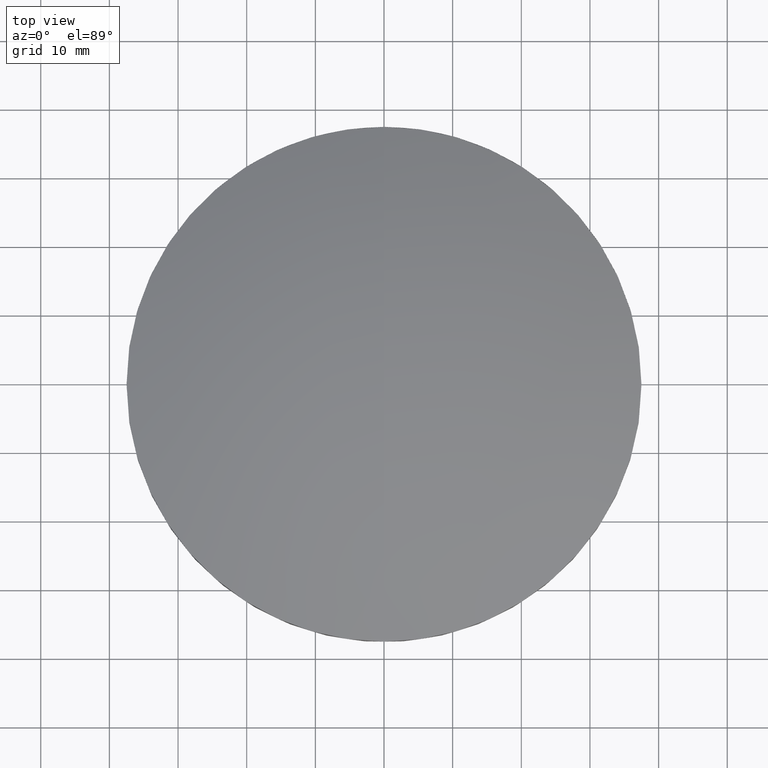
[diagram: clean part render]
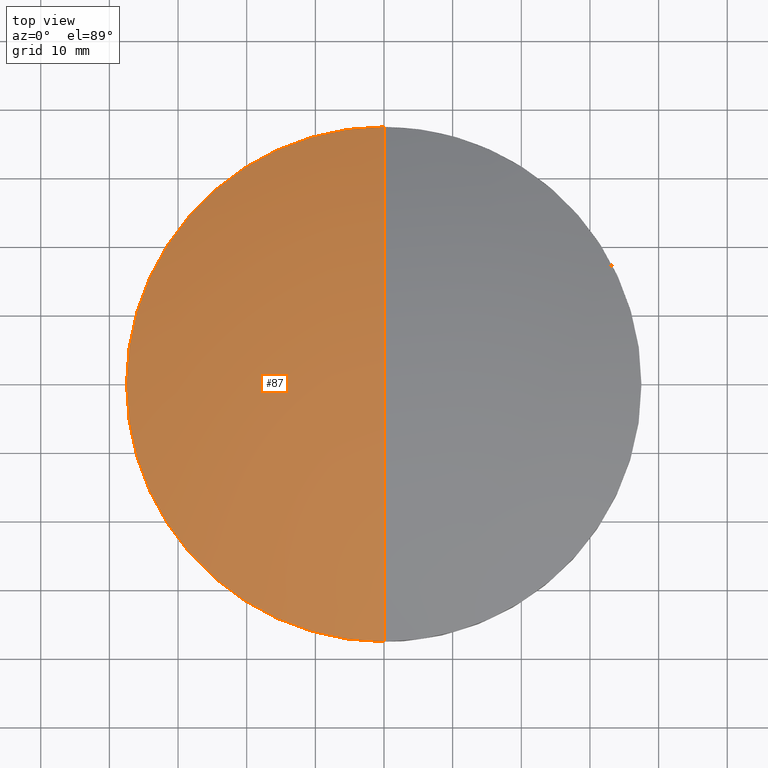
[diagram: same view with one face highlighted and labeled with its STEP entity id]
A machine part, top view. The second image highlights one B-rep face of the part: STEP entity #87.
In plain terms, the highlighted spherical surface has radius 103.01 mm.
Its self-contained STEP definition (entity closure, byte-faithful):
#28 = DIRECTION ( 'NONE',  ( 0.0000000000000000000, 0.0000000000000000000, -1.000000000000000000 ) ) ;
#29 = DIRECTION ( 'NONE',  ( 1.000000000000000000, 0.0000000000000000000, 0.0000000000000000000 ) ) ;
#30 = CARTESIAN_POINT ( 'NONE',  ( 0.0000000000000000000, 0.0000000000000000000, -97.97999999999999000 ) ) ;
#31 = AXIS2_PLACEMENT_3D ( 'NONE', #30, #29, #28 ) ;
#32 = CIRCLE ( 'NONE', #31, 103.0099999999999900 ) ;
#48 = VERTEX_POINT ( 'NONE', #61 ) ;
#49 = EDGE_CURVE ( 'NONE', #48, #86, #60, .T. ) ;
#51 = VERTEX_POINT ( 'NONE', #53 ) ;
#53 = CARTESIAN_POINT ( 'NONE',  ( 0.0000000000000000000, 6.307335025362153200E-015, 5.030000000000006500 ) ) ;
#54 = DIRECTION ( 'NONE',  ( 1.000000000000000000, 0.0000000000000000000, 0.0000000000000000000 ) ) ;
#55 = DIRECTION ( 'NONE',  ( -0.0000000000000000000, -0.0000000000000000000, 1.000000000000000000 ) ) ;
#56 = CARTESIAN_POINT ( 'NONE',  ( 0.0000000000000000000, 0.0000000000000000000, -2.038298430765758300 ) ) ;
#57 = AXIS2_PLACEMENT_3D ( 'NONE', #56, #55, #54 ) ;
#60 = CIRCLE ( 'NONE', #57, 37.50000000000000000 ) ;
#61 = CARTESIAN_POINT ( 'NONE',  ( 0.0000000000000000000, 37.49999999999997900, -2.038298430765768100 ) ) ;
#64 = ORIENTED_EDGE ( 'NONE', *, *, #49, .T. ) ;
#65 = EDGE_LOOP ( 'NONE', ( #64, #85, #112, #83 ) ) ;
#73 = EDGE_CURVE ( 'NONE', #48, #51, #32, .T. ) ;
#83 = ORIENTED_EDGE ( 'NONE', *, *, #73, .F. ) ;
#84 = EDGE_CURVE ( 'NONE', #111, #51, #140, .T. ) ;
#85 = ORIENTED_EDGE ( 'NONE', *, *, #110, .T. ) ;
#86 = VERTEX_POINT ( 'NONE', #135 ) ;
#87 = ADVANCED_FACE ( 'NONE', ( #134 ), #207, .T. ) ;
#110 = EDGE_CURVE ( 'NONE', #86, #111, #227, .T. ) ;
#111 = VERTEX_POINT ( 'NONE', #218 ) ;
#112 = ORIENTED_EDGE ( 'NONE', *, *, #84, .T. ) ;
#134 = FACE_OUTER_BOUND ( 'NONE', #65, .T. ) ;
#135 = CARTESIAN_POINT ( 'NONE',  ( -37.50000000000000000, 4.592273826833913900E-015, -2.038298430765758300 ) ) ;
#136 = DIRECTION ( 'NONE',  ( -1.224606353822377300E-016, -1.000000000000000000, 0.0000000000000000000 ) ) ;
#137 = DIRECTION ( 'NONE',  ( -1.000000000000000000, 1.224606353822377300E-016, 0.0000000000000000000 ) ) ;
#138 = CARTESIAN_POINT ( 'NONE',  ( 0.0000000000000000000, 0.0000000000000000000, -97.97999999999999000 ) ) ;
#139 = AXIS2_PLACEMENT_3D ( 'NONE', #138, #137, #136 ) ;
#140 = CIRCLE ( 'NONE', #139, 103.0099999999999900 ) ;
#203 = DIRECTION ( 'NONE',  ( 0.0000000000000000000, 1.000000000000000000, 0.0000000000000000000 ) ) ;
#204 = DIRECTION ( 'NONE',  ( -1.000000000000000000, 0.0000000000000000000, 0.0000000000000000000 ) ) ;
#205 = CARTESIAN_POINT ( 'NONE',  ( 0.0000000000000000000, 0.0000000000000000000, -97.97999999999999000 ) ) ;
#206 = AXIS2_PLACEMENT_3D ( 'NONE', #205, #204, #203 ) ;
#207 = SPHERICAL_SURFACE ( 'NONE', #206, 103.0099999999999900 ) ;
#218 = CARTESIAN_POINT ( 'NONE',  ( -4.592273826833911600E-015, -37.49999999999997900, -2.038298430765768100 ) ) ;
#219 = DIRECTION ( 'NONE',  ( 1.000000000000000000, 0.0000000000000000000, 0.0000000000000000000 ) ) ;
#220 = DIRECTION ( 'NONE',  ( -0.0000000000000000000, -0.0000000000000000000, 1.000000000000000000 ) ) ;
#221 = CARTESIAN_POINT ( 'NONE',  ( 0.0000000000000000000, 0.0000000000000000000, -2.038298430765758300 ) ) ;
#222 = AXIS2_PLACEMENT_3D ( 'NONE', #221, #220, #219 ) ;
#227 = CIRCLE ( 'NONE', #222, 37.50000000000000000 ) ;